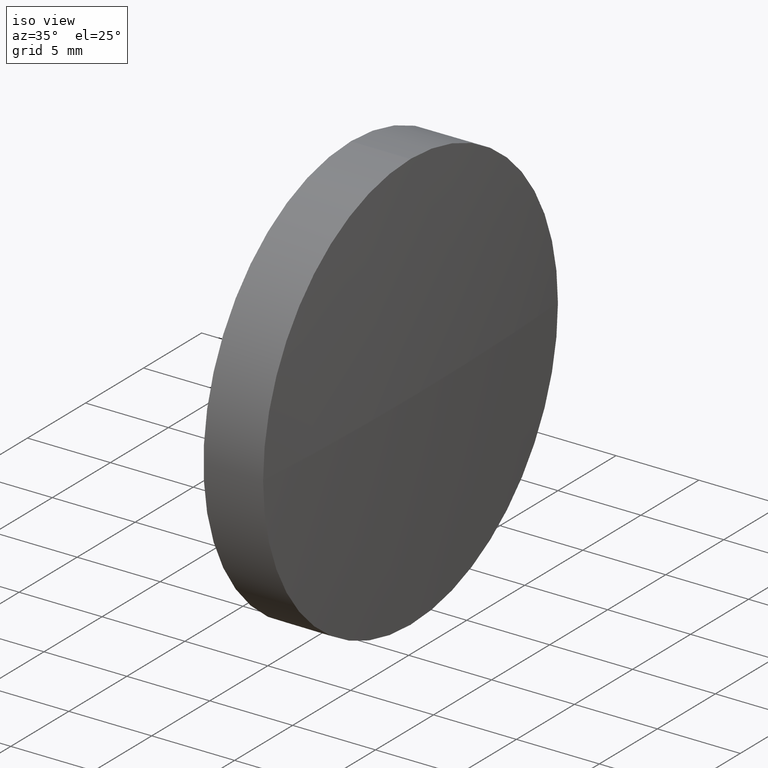
[diagram: clean part render]
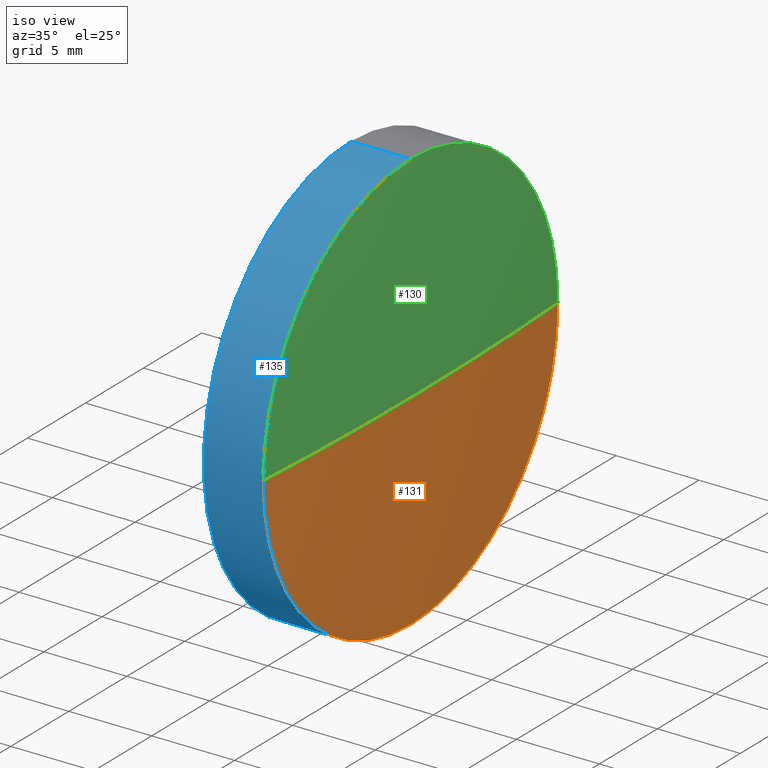
[diagram: same view with three faces highlighted in distinct colors, each labeled with its STEP entity id]
A machine part, iso view with three faces highlighted in distinct colors.
Their STEP definitions:

[orange] entity #131 — the highlighted spherical surface has radius 201.812 mm.
#3 = DIRECTION ( 'NONE',  ( 0.0000000000000000000, 0.0000000000000000000, 1.000000000000000000 ) ) ;
#4 = DIRECTION ( 'NONE',  ( -1.000000000000000000, 0.0000000000000000000, 0.0000000000000000000 ) ) ;
#15 = CIRCLE ( 'NONE', #86, 12.70000000000001700 ) ;
#17 = DIRECTION ( 'NONE',  ( 0.0000000000000000000, -1.224646799147353200E-016, 1.000000000000000000 ) ) ;
#20 = CIRCLE ( 'NONE', #68, 201.8124999999973900 ) ;
#21 = EDGE_CURVE ( 'NONE', #155, #126, #38, .T. ) ;
#28 = CARTESIAN_POINT ( 'NONE',  ( 433.6975226091756200, 147.0190194296691600, 0.0000000000000000000 ) ) ;
#38 = CIRCLE ( 'NONE', #72, 12.70000000000001700 ) ;
#42 = ORIENTED_EDGE ( 'NONE', *, *, #162, .F. ) ;
#49 = DIRECTION ( 'NONE',  ( 0.0000000000000000000, 0.0000000000000000000, -1.000000000000000000 ) ) ;
#50 = EDGE_LOOP ( 'NONE', ( #42, #73, #170, #98 ) ) ;
#55 = AXIS2_PLACEMENT_3D ( 'NONE', #112, #17, #62 ) ;
#62 = DIRECTION ( 'NONE',  ( 0.0000000000000000000, -1.000000000000000000, -1.224646799147353200E-016 ) ) ;
#63 = CARTESIAN_POINT ( 'NONE',  ( 434.0975226091756000, 147.0190194296694700, 0.0000000000000000000 ) ) ;
#64 = DIRECTION ( 'NONE',  ( 0.0000000000000000000, 0.0000000000000000000, 1.000000000000000000 ) ) ;
#67 = CIRCLE ( 'NONE', #55, 201.8124999999973900 ) ;
#68 = AXIS2_PLACEMENT_3D ( 'NONE', #92, #49, #4 ) ;
#72 = AXIS2_PLACEMENT_3D ( 'NONE', #137, #121, #3 ) ;
#73 = ORIENTED_EDGE ( 'NONE', *, *, #169, .T. ) ;
#82 = CARTESIAN_POINT ( 'NONE',  ( 232.2850226091782100, 147.0190194296694700, 0.0000000000000000000 ) ) ;
#86 = AXIS2_PLACEMENT_3D ( 'NONE', #28, #154, #64 ) ;
#89 = VERTEX_POINT ( 'NONE', #63 ) ;
#92 = CARTESIAN_POINT ( 'NONE',  ( 232.2850226091782100, 147.0190194296694700, 0.0000000000000000000 ) ) ;
#96 = DIRECTION ( 'NONE',  ( 0.0000000000000000000, 0.0000000000000000000, 1.000000000000000000 ) ) ;
#98 = ORIENTED_EDGE ( 'NONE', *, *, #183, .F. ) ;
#99 = AXIS2_PLACEMENT_3D ( 'NONE', #82, #96, #157 ) ;
#100 = VERTEX_POINT ( 'NONE', #176 ) ;
#102 = FACE_OUTER_BOUND ( 'NONE', #50, .T. ) ;
#112 = CARTESIAN_POINT ( 'NONE',  ( 232.2850226091782100, 147.0190194296694700, 0.0000000000000000000 ) ) ;
#121 = DIRECTION ( 'NONE',  ( -1.000000000000000000, -0.0000000000000000000, -0.0000000000000000000 ) ) ;
#126 = VERTEX_POINT ( 'NONE', #139 ) ;
#131 = ADVANCED_FACE ( 'NONE', ( #102 ), #143, .T. ) ;
#137 = CARTESIAN_POINT ( 'NONE',  ( 433.6975226091756200, 147.0190194296691600, 0.0000000000000000000 ) ) ;
#139 = CARTESIAN_POINT ( 'NONE',  ( 433.6975226091756200, 134.3190194296692800, 0.0000000000000000000 ) ) ;
#143 = SPHERICAL_SURFACE ( 'NONE', #99, 201.8124999999973900 ) ;
#154 = DIRECTION ( 'NONE',  ( -1.000000000000000000, -0.0000000000000000000, -0.0000000000000000000 ) ) ;
#155 = VERTEX_POINT ( 'NONE', #164 ) ;
#157 = DIRECTION ( 'NONE',  ( 0.0000000000000000000, -1.000000000000000000, 0.0000000000000000000 ) ) ;
#162 = EDGE_CURVE ( 'NONE', #89, #100, #67, .T. ) ;
#164 = CARTESIAN_POINT ( 'NONE',  ( 433.6975226091756200, 147.0190194296691600, -12.70000000000001700 ) ) ;
#169 = EDGE_CURVE ( 'NONE', #89, #126, #20, .T. ) ;
#170 = ORIENTED_EDGE ( 'NONE', *, *, #21, .F. ) ;
#176 = CARTESIAN_POINT ( 'NONE',  ( 433.6975226091756200, 159.7190194296693700, 1.555301434917123000E-015 ) ) ;
#183 = EDGE_CURVE ( 'NONE', #100, #155, #15, .T. ) ;

[blue] entity #135 — the highlighted cylindrical surface (partial cylindrical patch) has radius 12.7 mm, axis along (-1, -0, -0).
#3 = DIRECTION ( 'NONE',  ( 0.0000000000000000000, 0.0000000000000000000, 1.000000000000000000 ) ) ;
#8 = ORIENTED_EDGE ( 'NONE', *, *, #37, .T. ) ;
#13 = VERTEX_POINT ( 'NONE', #171 ) ;
#14 = ORIENTED_EDGE ( 'NONE', *, *, #118, .F. ) ;
#21 = EDGE_CURVE ( 'NONE', #155, #126, #38, .T. ) ;
#22 = ORIENTED_EDGE ( 'NONE', *, *, #185, .F. ) ;
#24 = AXIS2_PLACEMENT_3D ( 'NONE', #120, #177, #173 ) ;
#26 = LINE ( 'NONE', #80, #147 ) ;
#30 = CARTESIAN_POINT ( 'NONE',  ( 433.6975226091756200, 147.0190194296691600, 12.70000000000001700 ) ) ;
#34 = DIRECTION ( 'NONE',  ( -1.000000000000000000, -0.0000000000000000000, -0.0000000000000000000 ) ) ;
#35 = EDGE_CURVE ( 'NONE', #36, #123, #26, .T. ) ;
#36 = VERTEX_POINT ( 'NONE', #30 ) ;
#37 = EDGE_CURVE ( 'NONE', #126, #36, #69, .T. ) ;
#38 = CIRCLE ( 'NONE', #72, 12.70000000000001700 ) ;
#52 = CYLINDRICAL_SURFACE ( 'NONE', #24, 12.70000000000001700 ) ;
#65 = CARTESIAN_POINT ( 'NONE',  ( 430.0975226091756000, 147.0190194296691600, 12.70000000000001700 ) ) ;
#69 = CIRCLE ( 'NONE', #74, 12.70000000000001700 ) ;
#71 = FACE_OUTER_BOUND ( 'NONE', #108, .T. ) ;
#72 = AXIS2_PLACEMENT_3D ( 'NONE', #137, #121, #3 ) ;
#74 = AXIS2_PLACEMENT_3D ( 'NONE', #151, #153, #122 ) ;
#80 = CARTESIAN_POINT ( 'NONE',  ( 424.4676265580184200, 147.0190194296691600, 12.70000000000001700 ) ) ;
#94 = DIRECTION ( 'NONE',  ( -1.000000000000000000, -0.0000000000000000000, -0.0000000000000000000 ) ) ;
#104 = CARTESIAN_POINT ( 'NONE',  ( 430.0975226091756000, 147.0190194296691600, 0.0000000000000000000 ) ) ;
#108 = EDGE_LOOP ( 'NONE', ( #14, #156, #8, #184, #22 ) ) ;
#110 = DIRECTION ( 'NONE',  ( 0.0000000000000000000, 0.0000000000000000000, 1.000000000000000000 ) ) ;
#118 = EDGE_CURVE ( 'NONE', #155, #13, #172, .T. ) ;
#120 = CARTESIAN_POINT ( 'NONE',  ( 424.4676265580184200, 147.0190194296691600, 0.0000000000000000000 ) ) ;
#121 = DIRECTION ( 'NONE',  ( -1.000000000000000000, -0.0000000000000000000, -0.0000000000000000000 ) ) ;
#122 = DIRECTION ( 'NONE',  ( 0.0000000000000000000, 0.0000000000000000000, 1.000000000000000000 ) ) ;
#123 = VERTEX_POINT ( 'NONE', #65 ) ;
#126 = VERTEX_POINT ( 'NONE', #139 ) ;
#135 = ADVANCED_FACE ( 'NONE', ( #71 ), #52, .T. ) ;
#137 = CARTESIAN_POINT ( 'NONE',  ( 433.6975226091756200, 147.0190194296691600, 0.0000000000000000000 ) ) ;
#139 = CARTESIAN_POINT ( 'NONE',  ( 433.6975226091756200, 134.3190194296692800, 0.0000000000000000000 ) ) ;
#142 = VECTOR ( 'NONE', #34, 1000.000000000000000 ) ;
#145 = DIRECTION ( 'NONE',  ( -1.000000000000000000, -0.0000000000000000000, -0.0000000000000000000 ) ) ;
#147 = VECTOR ( 'NONE', #145, 1000.000000000000000 ) ;
#151 = CARTESIAN_POINT ( 'NONE',  ( 433.6975226091756200, 147.0190194296691600, 0.0000000000000000000 ) ) ;
#153 = DIRECTION ( 'NONE',  ( -1.000000000000000000, -0.0000000000000000000, -0.0000000000000000000 ) ) ;
#155 = VERTEX_POINT ( 'NONE', #164 ) ;
#156 = ORIENTED_EDGE ( 'NONE', *, *, #21, .T. ) ;
#164 = CARTESIAN_POINT ( 'NONE',  ( 433.6975226091756200, 147.0190194296691600, -12.70000000000001700 ) ) ;
#166 = AXIS2_PLACEMENT_3D ( 'NONE', #104, #94, #110 ) ;
#168 = CIRCLE ( 'NONE', #166, 12.70000000000001700 ) ;
#171 = CARTESIAN_POINT ( 'NONE',  ( 430.0975226091756000, 147.0190194296691600, -12.70000000000001700 ) ) ;
#172 = LINE ( 'NONE', #179, #142 ) ;
#173 = DIRECTION ( 'NONE',  ( 0.0000000000000000000, 0.0000000000000000000, 1.000000000000000000 ) ) ;
#177 = DIRECTION ( 'NONE',  ( -1.000000000000000000, -0.0000000000000000000, -0.0000000000000000000 ) ) ;
#179 = CARTESIAN_POINT ( 'NONE',  ( 424.4676265580184200, 147.0190194296691600, -12.70000000000001700 ) ) ;
#184 = ORIENTED_EDGE ( 'NONE', *, *, #35, .T. ) ;
#185 = EDGE_CURVE ( 'NONE', #13, #123, #168, .T. ) ;

[green] entity #130 — the highlighted spherical surface has radius 201.812 mm.
#2 = ORIENTED_EDGE ( 'NONE', *, *, #169, .F. ) ;
#4 = DIRECTION ( 'NONE',  ( -1.000000000000000000, 0.0000000000000000000, 0.0000000000000000000 ) ) ;
#10 = DIRECTION ( 'NONE',  ( -1.000000000000000000, -0.0000000000000000000, -0.0000000000000000000 ) ) ;
#17 = DIRECTION ( 'NONE',  ( 0.0000000000000000000, -1.224646799147353200E-016, 1.000000000000000000 ) ) ;
#18 = AXIS2_PLACEMENT_3D ( 'NONE', #125, #163, #32 ) ;
#20 = CIRCLE ( 'NONE', #68, 201.8124999999973900 ) ;
#25 = CIRCLE ( 'NONE', #48, 12.70000000000001700 ) ;
#30 = CARTESIAN_POINT ( 'NONE',  ( 433.6975226091756200, 147.0190194296691600, 12.70000000000001700 ) ) ;
#32 = DIRECTION ( 'NONE',  ( 0.0000000000000000000, -1.000000000000000000, 0.0000000000000000000 ) ) ;
#36 = VERTEX_POINT ( 'NONE', #30 ) ;
#37 = EDGE_CURVE ( 'NONE', #126, #36, #69, .T. ) ;
#39 = ORIENTED_EDGE ( 'NONE', *, *, #37, .F. ) ;
#47 = CARTESIAN_POINT ( 'NONE',  ( 433.6975226091756200, 147.0190194296691600, 0.0000000000000000000 ) ) ;
#48 = AXIS2_PLACEMENT_3D ( 'NONE', #47, #10, #79 ) ;
#49 = DIRECTION ( 'NONE',  ( 0.0000000000000000000, 0.0000000000000000000, -1.000000000000000000 ) ) ;
#54 = ORIENTED_EDGE ( 'NONE', *, *, #162, .T. ) ;
#55 = AXIS2_PLACEMENT_3D ( 'NONE', #112, #17, #62 ) ;
#62 = DIRECTION ( 'NONE',  ( 0.0000000000000000000, -1.000000000000000000, -1.224646799147353200E-016 ) ) ;
#63 = CARTESIAN_POINT ( 'NONE',  ( 434.0975226091756000, 147.0190194296694700, 0.0000000000000000000 ) ) ;
#67 = CIRCLE ( 'NONE', #55, 201.8124999999973900 ) ;
#68 = AXIS2_PLACEMENT_3D ( 'NONE', #92, #49, #4 ) ;
#69 = CIRCLE ( 'NONE', #74, 12.70000000000001700 ) ;
#74 = AXIS2_PLACEMENT_3D ( 'NONE', #151, #153, #122 ) ;
#76 = SPHERICAL_SURFACE ( 'NONE', #18, 201.8124999999973900 ) ;
#79 = DIRECTION ( 'NONE',  ( 0.0000000000000000000, 0.0000000000000000000, 1.000000000000000000 ) ) ;
#87 = EDGE_LOOP ( 'NONE', ( #2, #54, #129, #39 ) ) ;
#89 = VERTEX_POINT ( 'NONE', #63 ) ;
#92 = CARTESIAN_POINT ( 'NONE',  ( 232.2850226091782100, 147.0190194296694700, 0.0000000000000000000 ) ) ;
#100 = VERTEX_POINT ( 'NONE', #176 ) ;
#112 = CARTESIAN_POINT ( 'NONE',  ( 232.2850226091782100, 147.0190194296694700, 0.0000000000000000000 ) ) ;
#122 = DIRECTION ( 'NONE',  ( 0.0000000000000000000, 0.0000000000000000000, 1.000000000000000000 ) ) ;
#125 = CARTESIAN_POINT ( 'NONE',  ( 232.2850226091782100, 147.0190194296694700, 0.0000000000000000000 ) ) ;
#126 = VERTEX_POINT ( 'NONE', #139 ) ;
#129 = ORIENTED_EDGE ( 'NONE', *, *, #134, .F. ) ;
#130 = ADVANCED_FACE ( 'NONE', ( #186 ), #76, .T. ) ;
#134 = EDGE_CURVE ( 'NONE', #36, #100, #25, .T. ) ;
#139 = CARTESIAN_POINT ( 'NONE',  ( 433.6975226091756200, 134.3190194296692800, 0.0000000000000000000 ) ) ;
#151 = CARTESIAN_POINT ( 'NONE',  ( 433.6975226091756200, 147.0190194296691600, 0.0000000000000000000 ) ) ;
#153 = DIRECTION ( 'NONE',  ( -1.000000000000000000, -0.0000000000000000000, -0.0000000000000000000 ) ) ;
#162 = EDGE_CURVE ( 'NONE', #89, #100, #67, .T. ) ;
#163 = DIRECTION ( 'NONE',  ( 0.0000000000000000000, 0.0000000000000000000, 1.000000000000000000 ) ) ;
#169 = EDGE_CURVE ( 'NONE', #89, #126, #20, .T. ) ;
#176 = CARTESIAN_POINT ( 'NONE',  ( 433.6975226091756200, 159.7190194296693700, 1.555301434917123000E-015 ) ) ;
#186 = FACE_OUTER_BOUND ( 'NONE', #87, .T. ) ;